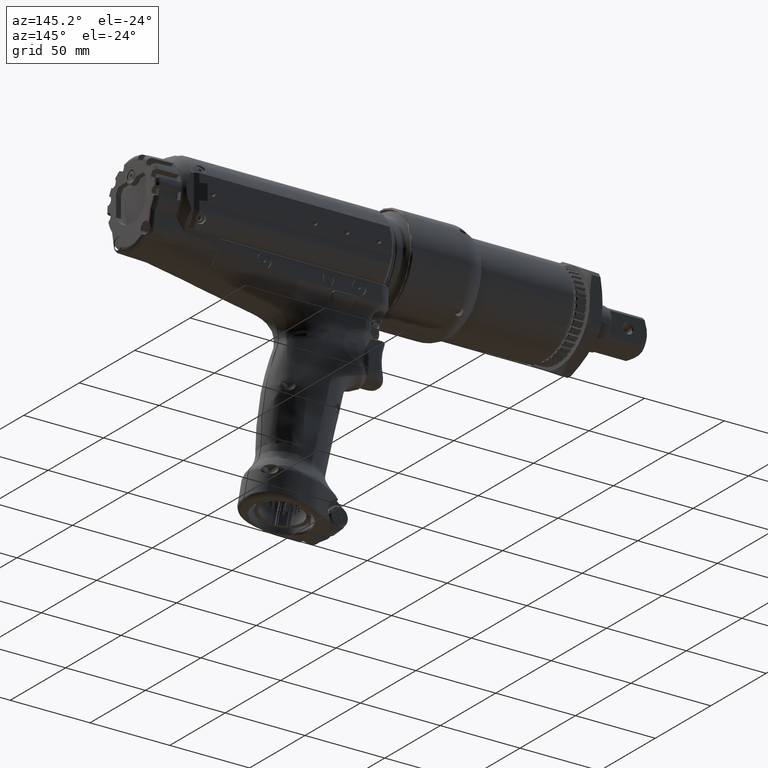
[diagram: clean part render]
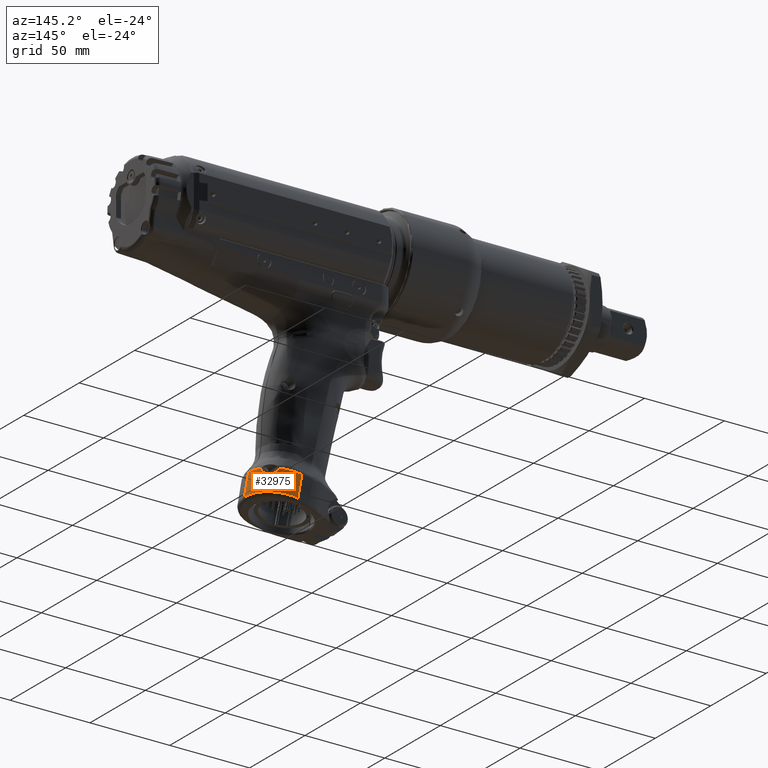
[diagram: same view with one face highlighted and labeled with its STEP entity id]
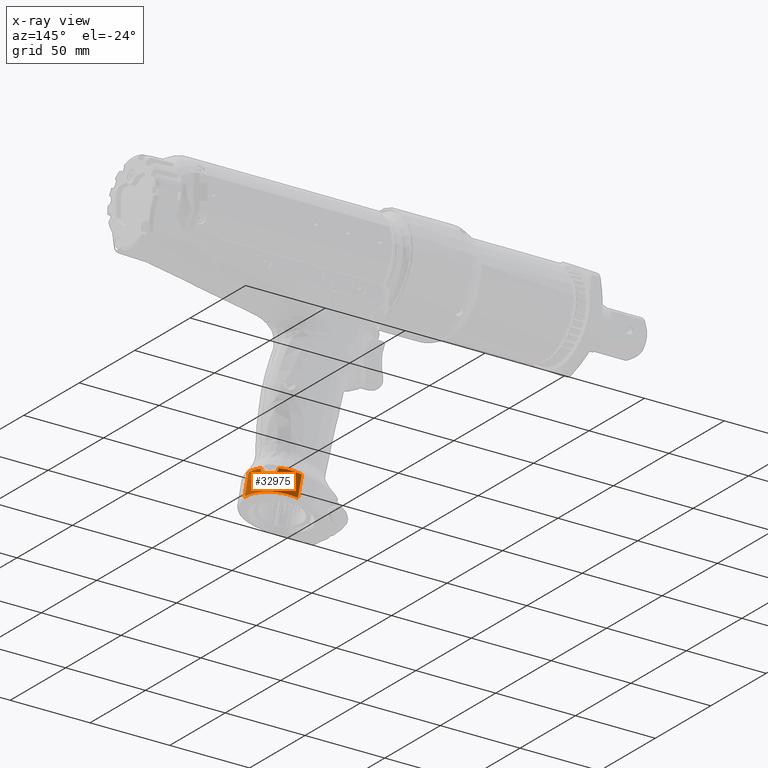
[diagram: x-ray of the same camera — body ghosted, the highlighted face saturated]
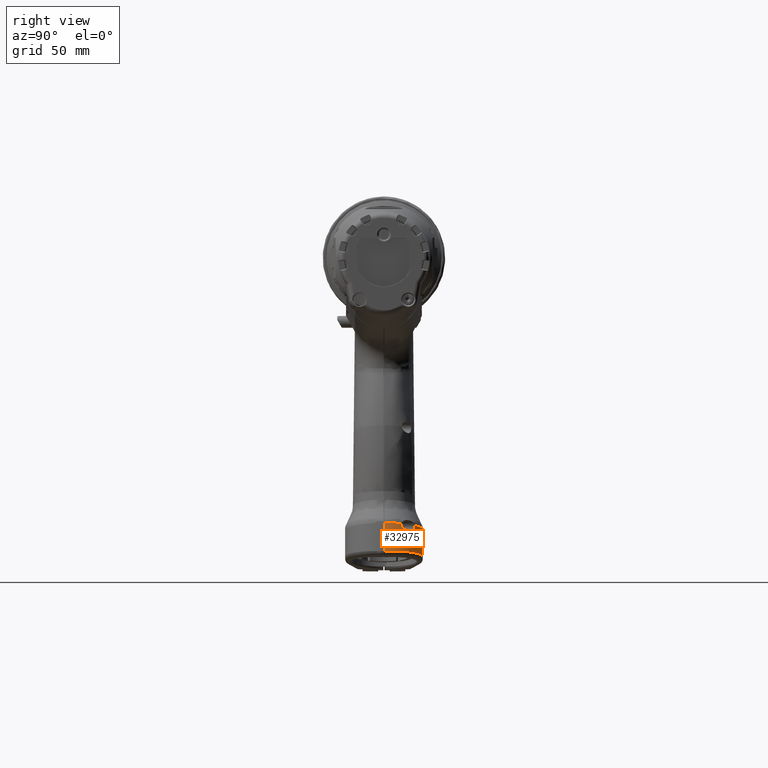
[diagram: same view with one face highlighted and labeled with its STEP entity id]
A machine part, auxiliary view. The second image highlights one B-rep face of the part: STEP entity #32975.
The next image is the same camera in x-ray: the body ghosted, the highlighted face saturated — about 0% of this face is hidden behind the body in this view.
A second angle (right view) of the same face is appended — the face is thin or edge-on in the first view.
In plain terms, the highlighted cylindrical surface (partial cylindrical patch) has radius 20 mm, axis along (-0.1736, 0, 0.9848).
Its self-contained STEP definition (entity closure, byte-faithful):
#740=CYLINDRICAL_SURFACE('',#35098,20.0000000000148);
#2172=LINE('',#67235,#4155);
#2173=LINE('',#67237,#4156);
#2174=LINE('',#67249,#4157);
#4155=VECTOR('',#39655,10.);
#4156=VECTOR('',#39656,10.);
#4157=VECTOR('',#39659,10.);
#6670=FACE_OUTER_BOUND('',#8496,.T.);
#8496=EDGE_LOOP('',(#23509,#23510,#23511,#23512,#23513,#23514,#23515,#23516,
#23517,#23518));
#10202=CIRCLE('',#35099,19.9999999999947);
#10203=CIRCLE('',#35100,20.0196581365117);
#10204=CIRCLE('',#35101,2.46360441594832);
#11786=B_SPLINE_CURVE_WITH_KNOTS('',3,(#67200,#67201,#67202,#67203,#67204,
#67205,#67206,#67207,#67208,#67209,#67210,#67211,#67212,#67213,#67214,#67215,
#67216,#67217,#67218,#67219,#67220,#67221,#67222),.UNSPECIFIED.,.F.,.F.,
(4,3,2,2,2,2,2,2,2,2,4),(2.34082247032961,2.3919503027592,2.48838343926638,
2.58481657577356,2.7181539801504,2.85149138452724,3.16099215680819,3.31574254294867,
3.47049292908914,3.52920919161397,3.53634868851001),.UNSPECIFIED.);
#11787=B_SPLINE_CURVE_WITH_KNOTS('',3,(#67224,#67225,#67226,#67227,#67228,
#67229,#67230,#67231),.UNSPECIFIED.,.F.,.F.,(4,2,2,4),(1.14439838575082,
1.1959751513796,1.25469141390443,1.26610562701233),.UNSPECIFIED.);
#11788=B_SPLINE_CURVE_WITH_KNOTS('',3,(#67241,#67242,#67243,#67244,#67245,
#67246,#67247),.UNSPECIFIED.,.F.,.F.,(4,1,1,1,4),(-6.22190471991814E-9,
7.11157267544012,14.2193277826116,21.3205622149425,26.5479907113652),
 .UNSPECIFIED.);
#11789=B_SPLINE_CURVE_WITH_KNOTS('',3,(#67251,#67252,#67253,#67254,#67255,
#67256,#67257,#67258,#67259,#67260,#67261,#67262,#67263,#67264),
 .UNSPECIFIED.,.F.,.F.,(4,2,2,2,2,2,4),(18.204317752021,19.3816624082443,
23.2579948898932,27.1343273715421,29.0724936123665,30.0415767327787,31.0106598531909),
 .UNSPECIFIED.);
#13556=VERTEX_POINT('',#67198);
#13557=VERTEX_POINT('',#67199);
#13558=VERTEX_POINT('',#67223);
#13559=VERTEX_POINT('',#67232);
#13560=VERTEX_POINT('',#67234);
#13561=VERTEX_POINT('',#67236);
#13562=VERTEX_POINT('',#67238);
#13563=VERTEX_POINT('',#67240);
#13564=VERTEX_POINT('',#67248);
#13565=VERTEX_POINT('',#67250);
#17313=EDGE_CURVE('',#13556,#13557,#11786,.T.);
#17314=EDGE_CURVE('',#13557,#13558,#11787,.T.);
#17315=EDGE_CURVE('',#13559,#13558,#10202,.T.);
#17316=EDGE_CURVE('',#13560,#13559,#2172,.T.);
#17317=EDGE_CURVE('',#13561,#13560,#2173,.T.);
#17318=EDGE_CURVE('',#13562,#13561,#10203,.T.);
#17319=EDGE_CURVE('',#13563,#13562,#11788,.T.);
#17320=EDGE_CURVE('',#13564,#13563,#2174,.T.);
#17321=EDGE_CURVE('',#13565,#13564,#11789,.T.);
#17322=EDGE_CURVE('',#13565,#13556,#10204,.T.);
#23509=ORIENTED_EDGE('',*,*,#17313,.T.);
#23510=ORIENTED_EDGE('',*,*,#17314,.T.);
#23511=ORIENTED_EDGE('',*,*,#17315,.F.);
#23512=ORIENTED_EDGE('',*,*,#17316,.F.);
#23513=ORIENTED_EDGE('',*,*,#17317,.F.);
#23514=ORIENTED_EDGE('',*,*,#17318,.F.);
#23515=ORIENTED_EDGE('',*,*,#17319,.F.);
#23516=ORIENTED_EDGE('',*,*,#17320,.F.);
#23517=ORIENTED_EDGE('',*,*,#17321,.F.);
#23518=ORIENTED_EDGE('',*,*,#17322,.T.);
#32975=ADVANCED_FACE('',(#6670),#740,.T.);
#35098=AXIS2_PLACEMENT_3D('',#67197,#39651,#39652);
#35099=AXIS2_PLACEMENT_3D('',#67233,#39653,#39654);
#35100=AXIS2_PLACEMENT_3D('',#67239,#39657,#39658);
#35101=AXIS2_PLACEMENT_3D('',#67265,#39660,#39661);
#39651=DIRECTION('center_axis',(-0.173648177666995,1.00652936508771E-13,
0.984807753012197));
#39652=DIRECTION('ref_axis',(0.690237440299691,0.713273835487287,0.121707483819958));
#39653=DIRECTION('center_axis',(-0.173648200392967,-2.93158249701329E-9,
0.984807749004994));
#39654=DIRECTION('ref_axis',(0.882249400393058,0.444337388045809,0.155564395318201));
#39655=DIRECTION('',(-0.173648177611651,-3.74229098721968E-9,0.984807753021955));
#39656=DIRECTION('',(-0.173648223432198,3.0977166952089E-6,0.984807744937683));
#39657=DIRECTION('center_axis',(0.173463118996502,0.0314069828656515,-0.98433944743431));
#39658=DIRECTION('ref_axis',(0.984632810809403,0.014988294189897,0.173993042719675));
#39659=DIRECTION('',(0.173648177666952,-7.17321935392909E-15,-0.984807753012204));
#39660=DIRECTION('center_axis',(-0.600290553736259,-0.793010764590804,-0.103851713217088));
#39661=DIRECTION('ref_axis',(-0.799781997506989,0.5951941623531,0.0780555287248958));
#67197=CARTESIAN_POINT('Origin',(54.8410074979951,-1.43512374245061E-11,
-139.85911772924));
#67198=CARTESIAN_POINT('',(66.7346777297329,15.9657156323602,-137.943760421995));
#67199=CARTESIAN_POINT('',(72.7346775323888,8.81128158219322,-137.943760204265));
#67200=CARTESIAN_POINT('Ctrl Pts',(66.7346775323896,15.9657157765127,-137.94376040311));
#67201=CARTESIAN_POINT('Ctrl Pts',(66.7346775222146,15.9889167991203,-138.120851835003));
#67202=CARTESIAN_POINT('Ctrl Pts',(66.7506600902548,15.9999999999972,-138.296868155909));
#67203=CARTESIAN_POINT('Ctrl Pts',(66.780254273353,15.9999999999972,-138.46470510848));
#67204=CARTESIAN_POINT('Ctrl Pts',(66.8360724014236,15.9999999999972,-138.781265443412));
#67205=CARTESIAN_POINT('Ctrl Pts',(66.9497784704063,15.9589314182286,-139.107493909969));
#67206=CARTESIAN_POINT('Ctrl Pts',(67.271127798692,15.7936489393895,-139.687566619762));
#67207=CARTESIAN_POINT('Ctrl Pts',(67.4781846007407,15.669205629131,-139.941670181718));
#67208=CARTESIAN_POINT('Ctrl Pts',(67.9816057769376,15.332891566815,-140.410781621146));
#67209=CARTESIAN_POINT('Ctrl Pts',(68.327992600905,15.0754000915157,-140.619829610294));
#67210=CARTESIAN_POINT('Ctrl Pts',(69.0286664781835,14.4882269462574,-140.883429753227));
#67211=CARTESIAN_POINT('Ctrl Pts',(69.3823038736138,14.1582830283461,-140.93912289721));
#67212=CARTESIAN_POINT('Ctrl Pts',(70.4131761549936,13.1018523039357,-140.953549903533));
#67213=CARTESIAN_POINT('Ctrl Pts',(71.0739449419517,12.2543432435955,-140.708275056165));
#67214=CARTESIAN_POINT('Ctrl Pts',(71.8518704568148,10.9993044976131,-140.09471679477));
#67215=CARTESIAN_POINT('Ctrl Pts',(72.0756349429068,10.5866531190442,-139.850424204311));
#67216=CARTESIAN_POINT('Ctrl Pts',(72.4427671504473,9.80914769839641,-139.278566382468));
#67217=CARTESIAN_POINT('Ctrl Pts',(72.5890285943784,9.44060480915692,-138.9579047686));
#67218=CARTESIAN_POINT('Ctrl Pts',(72.7053649303886,9.02614094454462,-138.391338986803));
#67219=CARTESIAN_POINT('Ctrl Pts',(72.7292384253037,8.91558663968401,-138.2086676616));
#67220=CARTESIAN_POINT('Ctrl Pts',(72.7343929755867,8.82866905126585,-137.991328731543));
#67221=CARTESIAN_POINT('Ctrl Pts',(72.7346775353395,8.81971930195726,-137.967606602463));
#67222=CARTESIAN_POINT('Ctrl Pts',(72.7346775323888,8.81128158219324,-137.943760204265));
#67223=CARTESIAN_POINT('',(72.4859958295232,8.88674571903375,-136.747830224391));
#67224=CARTESIAN_POINT('Ctrl Pts',(72.7346775323888,8.81128158219324,-137.943760204265));
#67225=CARTESIAN_POINT('Ctrl Pts',(72.7346775110725,8.75032626544655,-137.771490349841));
#67226=CARTESIAN_POINT('Ctrl Pts',(72.7189548292967,8.71779788708346,-137.5921267047));
#67227=CARTESIAN_POINT('Ctrl Pts',(72.6551142181359,8.7177978870835,-137.23006860727));
#67228=CARTESIAN_POINT('Ctrl Pts',(72.5992291674763,8.76059712974709,-137.031667106607));
#67229=CARTESIAN_POINT('Ctrl Pts',(72.5149117169206,8.85315656373167,-136.816055968167));
#67230=CARTESIAN_POINT('Ctrl Pts',(72.5006661001251,8.86943512293736,-136.781580937676));
#67231=CARTESIAN_POINT('Ctrl Pts',(72.4859958835323,8.88674745519342,-136.747831091495));
#67232=CARTESIAN_POINT('',(74.5349466176697,0.299999897207763,-136.386544906013));
#67233=CARTESIAN_POINT('Origin',(54.8410075782981,-1.40000011965709E-12,
-139.859118184574));
#67234=CARTESIAN_POINT('',(77.0875749510637,0.299999952219442,-150.863219570182));
#67235=CARTESIAN_POINT('',(77.0875749510637,0.299999952219442,-150.863219570182));
#67236=CARTESIAN_POINT('',(77.0978533931435,0.299999769774245,-150.921511496123));
#67237=CARTESIAN_POINT('',(77.097853393182,0.299999768861956,-150.921511496261));
#67238=CARTESIAN_POINT('',(76.9999096507684,1.9234685565236,-150.886971958665));
#67239=CARTESIAN_POINT('Origin',(57.3858411307851,-6.07568692493084E-5,
-154.40479272964));
#67240=CARTESIAN_POINT('',(57.2964011842526,19.9999999999982,-153.784347302092));
#67241=CARTESIAN_POINT('Ctrl Pts',(57.2964011842526,19.9999999999982,-153.784347302092));
#67242=CARTESIAN_POINT('Ctrl Pts',(59.8902655929197,20.001596637246,-153.326928068214));
#67243=CARTESIAN_POINT('Ctrl Pts',(65.0813148232458,18.9460739121552,-152.445291487714));
#67244=CARTESIAN_POINT('Ctrl Pts',(71.6834099321839,14.4510610482146,-151.424615722304));
#67245=CARTESIAN_POINT('Ctrl Pts',(75.6979121970854,8.32826738068619,-150.912150623057));
#67246=CARTESIAN_POINT('Ctrl Pts',(76.8057400255087,3.84935249370109,-150.859748675293));
#67247=CARTESIAN_POINT('Ctrl Pts',(76.999909650853,1.92346855568076,-150.886971958677));
#67248=CARTESIAN_POINT('',(54.8410075075352,19.9999999999983,-139.859117783322));
#67249=CARTESIAN_POINT('',(54.8410075075352,19.9999999999983,-139.859117783322));
#67250=CARTESIAN_POINT('',(66.740251371969,15.9375588687643,-137.760959984143));
#67251=CARTESIAN_POINT('Ctrl Pts',(66.740251371969,15.9375588687643,-137.760959984143));
#67252=CARTESIAN_POINT('Ctrl Pts',(66.4282645359915,16.1777605379758,-137.815971682596));
#67253=CARTESIAN_POINT('Ctrl Pts',(66.1092232629695,16.4085289513357,-137.87222726865));
#67254=CARTESIAN_POINT('Ctrl Pts',(64.711748155302,17.3567006774218,-138.11863984219));
#67255=CARTESIAN_POINT('Ctrl Pts',(63.5694463352783,17.9766945755967,-138.320058478843));
#67256=CARTESIAN_POINT('Ctrl Pts',(61.1874031926101,18.9785814049451,-138.740076965541));
#67257=CARTESIAN_POINT('Ctrl Pts',(59.9479031216539,19.3604175317479,-138.958634276403));
#67258=CARTESIAN_POINT('Ctrl Pts',(58.0513841679514,19.7433749399767,-139.293041745912));
#67259=CARTESIAN_POINT('Ctrl Pts',(57.4130796201079,19.8395468685746,-139.405592062437));
#67260=CARTESIAN_POINT('Ctrl Pts',(56.45078260296,19.9357732560573,-139.575270994222));
#67261=CARTESIAN_POINT('Ctrl Pts',(56.1294210769355,19.9598467601217,-139.631935703216));
#67262=CARTESIAN_POINT('Ctrl Pts',(55.4855370343952,19.9919678897404,-139.745469835132));
#67263=CARTESIAN_POINT('Ctrl Pts',(55.1633134254375,19.999999514194,-139.802286552589));
#67264=CARTESIAN_POINT('Ctrl Pts',(54.8410075075352,19.9999999999983,-139.859117783322));
#67265=CARTESIAN_POINT('Origin',(68.7050243879304,14.4993925214861,-138.136058386123));